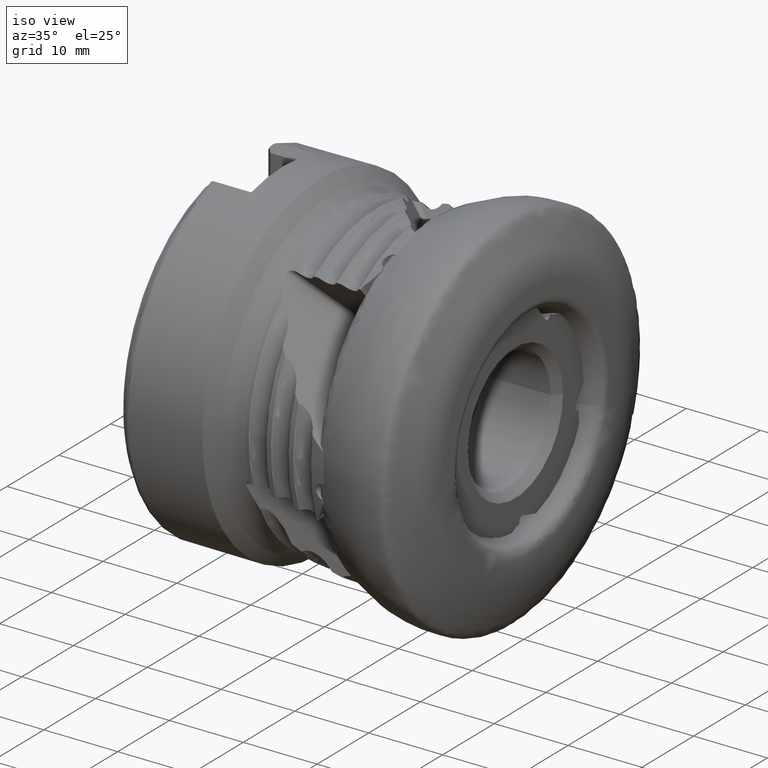
[diagram: clean part render]
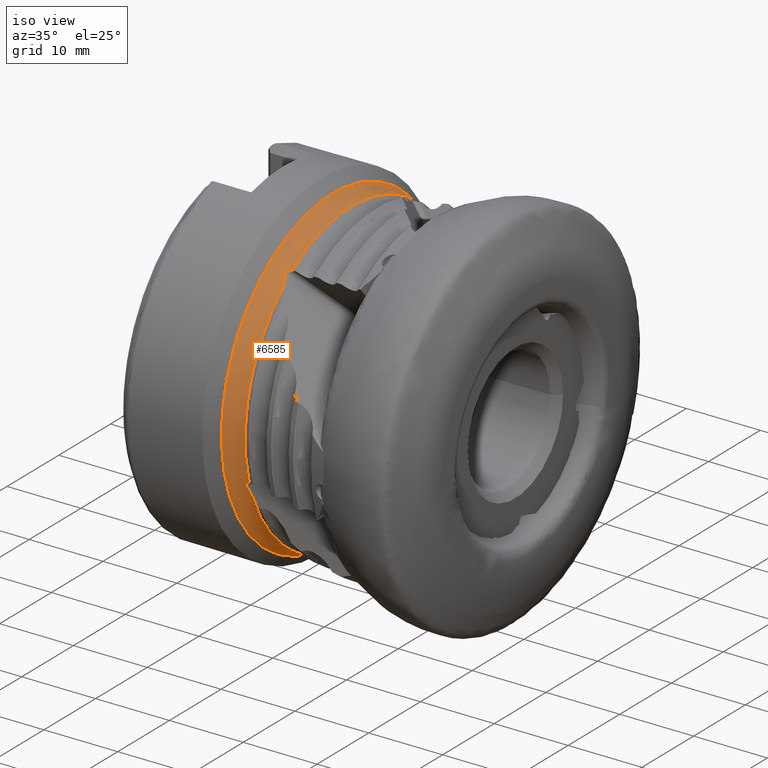
[diagram: same view with one face highlighted and labeled with its STEP entity id]
A machine part, iso view. The second image highlights one B-rep face of the part: STEP entity #6585.
In plain terms, the highlighted toroidal blend (fillet) surface has major radius 23.6136 mm and minor (blend) radius 3 mm.
Its self-contained STEP definition (entity closure, byte-faithful):
#55 = ORIENTED_EDGE ( 'NONE', *, *, #7928, .F. ) ;
#81 = CARTESIAN_POINT ( 'NONE',  ( -23.80638413270529300, -0.4492731188287914500, -20.60867567491587600 ) ) ;
#188 = B_SPLINE_CURVE_WITH_KNOTS ( 'NONE', 3,
 ( #9385, #11515, #10478, #4196 ),
 .UNSPECIFIED., .F., .F.,
 ( 4, 4 ),
 ( 0.005550683111474337400, 0.007261614352869764200 ),
 .UNSPECIFIED. ) ;
#226 = CARTESIAN_POINT ( 'NONE',  ( -23.28371104415699100, 19.41116170045405900, -7.074292132318036300 ) ) ;
#289 = CARTESIAN_POINT ( 'NONE',  ( -23.86417863357629800, 12.36359245571694000, 16.49488308533163700 ) ) ;
#382 = VERTEX_POINT ( 'NONE', #11715 ) ;
#422 = VERTEX_POINT ( 'NONE', #5547 ) ;
#508 = CARTESIAN_POINT ( 'NONE',  ( -23.80638413270612100, -11.75000604274692300, 16.93684496606680800 ) ) ;
#513 = DIRECTION ( 'NONE',  ( 1.000000000000000000, -0.0000000000000000000, -0.0000000000000000000 ) ) ;
#664 = DIRECTION ( 'NONE',  ( 1.000000000000000000, -0.0000000000000000000, -0.0000000000000000000 ) ) ;
#936 = DIRECTION ( 'NONE',  ( 0.0000000000000000000, 0.0000000000000000000, -1.000000000000000000 ) ) ;
#1129 = CARTESIAN_POINT ( 'NONE',  ( -23.63871154043384600, -0.6052493657359374600, -20.60907077964518000 ) ) ;
#1332 = CARTESIAN_POINT ( 'NONE',  ( -23.75547720046087400, 12.52429176220558700, 16.37257519267569700 ) ) ;
#1391 = CARTESIAN_POINT ( 'NONE',  ( -23.66010781106682600, 11.80275394061760800, 16.90670372290878400 ) ) ;
#1510 = ORIENTED_EDGE ( 'NONE', *, *, #9169, .F. ) ;
#1559 = CARTESIAN_POINT ( 'NONE',  ( -23.63871154043459600, -11.62405084501264200, 17.02884515014766400 ) ) ;
#1907 = CARTESIAN_POINT ( 'NONE',  ( -23.80638413270612500, -19.73884832167570700, -5.941146887853518500 ) ) ;
#2164 = CARTESIAN_POINT ( 'NONE',  ( -23.43218048049279600, -0.7002585191186652100, -20.62476210813031600 ) ) ;
#2309 = AXIS2_PLACEMENT_3D ( 'NONE', #6954, #664, #7996 ) ;
#2382 = CARTESIAN_POINT ( 'NONE',  ( -23.57137482581160300, 12.63602328376686400, 16.29752341412711300 ) ) ;
#2440 = CARTESIAN_POINT ( 'NONE',  ( -23.28371104415699500, 10.92251005285955600, 17.53674946732526900 ) ) ;
#2576 = CARTESIAN_POINT ( 'NONE',  ( -23.66009214784963900, 19.72649692085947500, -6.000582844810617500 ) ) ;
#2596 = CARTESIAN_POINT ( 'NONE',  ( -25.91968037084017200, 0.0000000000000000000, -21.48087253406423600 ) ) ;
#2613 = CARTESIAN_POINT ( 'NONE',  ( -23.43218048049313000, -11.55640995677697600, 17.09738468074782200 ) ) ;
#2722 = CARTESIAN_POINT ( 'NONE',  ( -23.28371104415699100, 0.0000000000000000000, 0.0000000000000000000 ) ) ;
#2777 = B_SPLINE_CURVE_WITH_KNOTS ( 'NONE', 3,
 ( #4267, #10546, #6377, #81, #7432, #1129, #8480, #2164, #9534, #3247 ),
 .UNSPECIFIED., .F., .F.,
 ( 4, 2, 2, 2, 4 ),
 ( 5.961111266197994900E-016, 0.0002279252545752855200, 0.0004558505091499748900, 0.0006837757637246643100, 0.0009117010182993536800 ),
 .UNSPECIFIED. ) ;
#2869 = EDGE_LOOP ( 'NONE', ( #7251, #3016, #3222, #5360, #6672, #11355, #13278, #4565, #7765, #11517, #10821, #1510, #55, #9054, #10248 ) ) ;
#2880 = CARTESIAN_POINT ( 'NONE',  ( -23.28371104415699100, -19.14433896403621600, -7.767438018074937400 ) ) ;
#2940 = VERTEX_POINT ( 'NONE', #9141 ) ;
#2948 = CARTESIAN_POINT ( 'NONE',  ( -23.84192257473487000, -19.65191913252433100, -6.223271270567659400 ) ) ;
#2970 = CARTESIAN_POINT ( 'NONE',  ( -23.63871154043458100, -19.78742339961641200, -5.792926755920480500 ) ) ;
#3016 = ORIENTED_EDGE ( 'NONE', *, *, #7062, .T. ) ;
#3222 = ORIENTED_EDGE ( 'NONE', *, *, #7274, .F. ) ;
#3231 = CARTESIAN_POINT ( 'NONE',  ( -23.84192257473534200, -0.1540942894880341100, -20.61318233190343800 ) ) ;
#3247 = CARTESIAN_POINT ( 'NONE',  ( -23.28371104415699100, -0.7296727846162556200, -20.64718831613500100 ) ) ;
#3356 = CARTESIAN_POINT ( 'NONE',  ( -23.86417863357675600, 19.50812622417452900, -6.661275976229689800 ) ) ;
#3416 = CARTESIAN_POINT ( 'NONE',  ( -23.84192257473534200, -0.1540942894880341100, -20.61318233190343800 ) ) ;
#3470 = CARTESIAN_POINT ( 'NONE',  ( -23.35841736027987600, 12.71089860022907200, 16.27028787659199300 ) ) ;
#3603 = AXIS2_PLACEMENT_3D ( 'NONE', #4606, #11953, #5651 ) ;
#3649 = CARTESIAN_POINT ( 'NONE',  ( -23.47295510748821100, 19.89111950407114500, -5.484695492191007400 ) ) ;
#3686 = CARTESIAN_POINT ( 'NONE',  ( -23.28371104415699100, -11.54579511044232200, 17.13281713560958500 ) ) ;
#3745 = VERTEX_POINT ( 'NONE', #2880 ) ;
#3795 = DIRECTION ( 'NONE',  ( 0.0000000000000000000, 0.0000000000000000000, -1.000000000000000000 ) ) ;
#3938 = CARTESIAN_POINT ( 'NONE',  ( -23.28371104415699100, -13.30319862797051500, 15.80707797157066700 ) ) ;
#3967 = FACE_OUTER_BOUND ( 'NONE', #5201, .T. ) ;
#4031 = VERTEX_POINT ( 'NONE', #7882 ) ;
#4039 = CARTESIAN_POINT ( 'NONE',  ( -23.43218048049313000, -19.83170618283807200, -5.707416568654029000 ) ) ;
#4094 = B_SPLINE_CURVE_WITH_KNOTS ( 'NONE', 3,
 ( #3416, #9684, #11829, #5528 ),
 .UNSPECIFIED., .F., .F.,
 ( 4, 4 ),
 ( 0.001344152581504036900, 0.003062699632682012100 ),
 .UNSPECIFIED. ) ;
#4129 = CARTESIAN_POINT ( 'NONE',  ( -23.28371104415699500, 1.471346456046979300, -20.60761867224909200 ) ) ;
#4196 = CARTESIAN_POINT ( 'NONE',  ( -23.28371104415699100, -13.30319862797051500, 15.80707797157066700 ) ) ;
#4267 = CARTESIAN_POINT ( 'NONE',  ( -23.84192257473534200, -0.1540942894880341100, -20.61318233190343800 ) ) ;
#4314 = CARTESIAN_POINT ( 'NONE',  ( -23.84192257473488000, 12.24078947643935500, 16.58584046383662200 ) ) ;
#4396 = B_SPLINE_CURVE_WITH_KNOTS ( 'NONE', 3,
 ( #13066, #2576, #3649, #10987 ),
 .UNSPECIFIED., .F., .F.,
 ( 4, 4 ),
 ( 0.003932945843198613600, 0.005650102439983208400 ),
 .UNSPECIFIED. ) ;
#4416 = CARTESIAN_POINT ( 'NONE',  ( -23.75547720046198900, 19.44146332255862900, -6.851905316207843400 ) ) ;
#4531 = CARTESIAN_POINT ( 'NONE',  ( -23.28371104415699100, 0.0000000000000000000, 0.0000000000000000000 ) ) ;
#4565 = ORIENTED_EDGE ( 'NONE', *, *, #10525, .T. ) ;
#4606 = CARTESIAN_POINT ( 'NONE',  ( -23.28371104415699100, 0.0000000000000000000, 0.0000000000000000000 ) ) ;
#4625 = TOROIDAL_SURFACE ( 'NONE', #6646, 23.61358647205465300, 2.999999999999999100 ) ;
#4655 = CARTESIAN_POINT ( 'NONE',  ( -23.84192257473487700, -11.99145967857793900, 16.76698916548192000 ) ) ;
#4716 = AXIS2_PLACEMENT_3D ( 'NONE', #4531, #11876, #5578 ) ;
#4792 = CIRCLE ( 'NONE', #10672, 21.48087253406423600 ) ;
#4817 = AXIS2_PLACEMENT_3D ( 'NONE', #2722, #10065, #3795 ) ;
#5064 = EDGE_CURVE ( 'NONE', #2940, #4031, #9440, .T. ) ;
#5070 = VERTEX_POINT ( 'NONE', #10977 ) ;
#5103 = CARTESIAN_POINT ( 'NONE',  ( -23.28371104415699100, -19.86212428201259800, -5.686372019173274900 ) ) ;
#5127 = CARTESIAN_POINT ( 'NONE',  ( -23.47292674444690900, -19.31605110026802300, -7.254571711522534500 ) ) ;
#5179 = VERTEX_POINT ( 'NONE', #13376 ) ;
#5201 = EDGE_LOOP ( 'NONE', ( #13254 ) ) ;
#5324 = VERTEX_POINT ( 'NONE', #7307 ) ;
#5360 = ORIENTED_EDGE ( 'NONE', *, *, #12880, .F. ) ;
#5465 = CARTESIAN_POINT ( 'NONE',  ( -23.57137482581240900, 19.40461177847997100, -6.981360582894525100 ) ) ;
#5528 = CARTESIAN_POINT ( 'NONE',  ( -23.28371104415699500, 1.471346456046979300, -20.60761867224909200 ) ) ;
#5547 = CARTESIAN_POINT ( 'NONE',  ( -23.84192257473487300, 19.55668362414941400, -6.516376026847661200 ) ) ;
#5578 = DIRECTION ( 'NONE',  ( 0.0000000000000000000, 0.0000000000000000000, -1.000000000000000000 ) ) ;
#5651 = DIRECTION ( 'NONE',  ( 0.0000000000000000000, 0.0000000000000000000, -1.000000000000000000 ) ) ;
#5754 = CARTESIAN_POINT ( 'NONE',  ( -23.86638392289609800, -11.93219220718889800, 16.80969811072811400 ) ) ;
#5826 = B_SPLINE_CURVE_WITH_KNOTS ( 'NONE', 3,
 ( #2948, #7177, #5127, #12477 ),
 .UNSPECIFIED., .F., .F.,
 ( 4, 4 ),
 ( 0.002626934736421045700, 0.004345146049159988800 ),
 .UNSPECIFIED. ) ;
#5886 = VERTEX_POINT ( 'NONE', #7682 ) ;
#5987 = EDGE_CURVE ( 'NONE', #422, #382, #4396, .T. ) ;
#5995 = EDGE_CURVE ( 'NONE', #9358, #9358, #4792, .T. ) ;
#6114 = DIRECTION ( 'NONE',  ( 0.0000000000000000000, 0.0000000000000000000, -1.000000000000000000 ) ) ;
#6184 = EDGE_CURVE ( 'NONE', #5179, #3745, #5826, .T. ) ;
#6377 = CARTESIAN_POINT ( 'NONE',  ( -23.86417863357640800, -0.3069073923539431500, -20.61177804708606600 ) ) ;
#6388 = CIRCLE ( 'NONE', #3603, 20.66007763137765400 ) ;
#6431 = B_SPLINE_CURVE_WITH_KNOTS ( 'NONE', 3,
 ( #6484, #9634, #3356, #10687, #4416, #11775, #5465, #12829, #6530, #226 ),
 .UNSPECIFIED., .F., .F.,
 ( 4, 2, 2, 2, 4 ),
 ( 2.221529986854170700E-017, 0.0002279252545739080700, 0.0004558505091477939100, 0.0006837757637216797200, 0.0009117010182955655900 ),
 .UNSPECIFIED. ) ;
#6484 = CARTESIAN_POINT ( 'NONE',  ( -23.84192257473487300, 19.55668362414941400, -6.516376026847661200 ) ) ;
#6530 = CARTESIAN_POINT ( 'NONE',  ( -23.35841736028009000, 19.40184698827832600, -7.060987484475214500 ) ) ;
#6558 = CIRCLE ( 'NONE', #13262, 20.66007763137765400 ) ;
#6585 = ADVANCED_FACE ( 'NONE', ( #9531, #3967 ), #4625, .F. ) ;
#6646 = AXIS2_PLACEMENT_3D ( 'NONE', #12270, #11348, #6114 ) ;
#6672 = ORIENTED_EDGE ( 'NONE', *, *, #5064, .T. ) ;
#6718 = EDGE_CURVE ( 'NONE', #9563, #5070, #2777, .T. ) ;
#6805 = CARTESIAN_POINT ( 'NONE',  ( -23.86417863357676300, -11.86700586349091300, 16.85567436342116200 ) ) ;
#6814 = CARTESIAN_POINT ( 'NONE',  ( -25.91968037084017200, 0.0000000000000000000, 0.0000000000000000000 ) ) ;
#6954 = CARTESIAN_POINT ( 'NONE',  ( -23.28371104415699100, 0.0000000000000000000, 0.0000000000000000000 ) ) ;
#7062 = EDGE_CURVE ( 'NONE', #5179, #5324, #11977, .T. ) ;
#7153 = CARTESIAN_POINT ( 'NONE',  ( -23.84192257473487000, -19.65191913252433100, -6.223271270567659400 ) ) ;
#7177 = CARTESIAN_POINT ( 'NONE',  ( -23.66005572467571500, -19.48609213898908600, -6.740474054059466100 ) ) ;
#7237 = CARTESIAN_POINT ( 'NONE',  ( -23.28371104415699500, 10.92251005285955600, 17.53674946732526900 ) ) ;
#7238 = DIRECTION ( 'NONE',  ( 1.000000000000000000, -0.0000000000000000000, -0.0000000000000000000 ) ) ;
#7251 = ORIENTED_EDGE ( 'NONE', *, *, #6184, .F. ) ;
#7274 = EDGE_CURVE ( 'NONE', #10258, #5324, #11524, .T. ) ;
#7307 = CARTESIAN_POINT ( 'NONE',  ( -23.28371104415699100, -19.86212428201259800, -5.686372019173274900 ) ) ;
#7432 = CARTESIAN_POINT ( 'NONE',  ( -23.75547720046113700, -0.5088066378299503900, -20.60728556578887400 ) ) ;
#7529 = EDGE_CURVE ( 'NONE', #13447, #11961, #8937, .T. ) ;
#7613 = EDGE_CURVE ( 'NONE', #382, #9379, #12672, .T. ) ;
#7638 = CARTESIAN_POINT ( 'NONE',  ( -23.80638413270504500, 12.47694521924269800, 16.40869273906938000 ) ) ;
#7682 = CARTESIAN_POINT ( 'NONE',  ( -23.28371104415699100, 19.41116170045405900, -7.074292132318036300 ) ) ;
#7695 = CARTESIAN_POINT ( 'NONE',  ( -23.47296731068114900, 11.36297775288212000, 17.22269445451145100 ) ) ;
#7765 = ORIENTED_EDGE ( 'NONE', *, *, #7613, .F. ) ;
#7853 = CARTESIAN_POINT ( 'NONE',  ( -23.75547720046199300, -11.70102532849589000, 16.97071326864511000 ) ) ;
#7863 = DIRECTION ( 'NONE',  ( 0.0000000000000000000, 0.0000000000000000000, -1.000000000000000000 ) ) ;
#7882 = CARTESIAN_POINT ( 'NONE',  ( -23.28371104415699100, -11.54579511044232200, 17.13281713560958500 ) ) ;
#7928 = EDGE_CURVE ( 'NONE', #9563, #11430, #4094, .T. ) ;
#7996 = DIRECTION ( 'NONE',  ( 0.0000000000000000000, 0.0000000000000000000, -1.000000000000000000 ) ) ;
#8202 = CARTESIAN_POINT ( 'NONE',  ( -23.86417863357675300, -19.69780542404668100, -6.077503425438614200 ) ) ;
#8287 = CARTESIAN_POINT ( 'NONE',  ( -23.28371104415699100, 12.72643047661696900, 16.27503533201652200 ) ) ;
#8447 = B_SPLINE_CURVE_WITH_KNOTS ( 'NONE', 3,
 ( #12884, #11838, #289, #7638, #1332, #8695, #2382, #9735, #3470, #10800 ),
 .UNSPECIFIED., .F., .F.,
 ( 4, 2, 2, 2, 4 ),
 ( 9.868183040423138300E-016, 0.0002279252545757385300, 0.0004558505091504902600, 0.0006837757637252419700, 0.0009117010182999936900 ),
 .UNSPECIFIED. ) ;
#8480 = CARTESIAN_POINT ( 'NONE',  ( -23.57137482581179100, -0.6433136661697490500, -20.61224154207490100 ) ) ;
#8695 = CARTESIAN_POINT ( 'NONE',  ( -23.63871154043362600, 12.60336489044223500, 16.31733184787012200 ) ) ;
#8746 = CARTESIAN_POINT ( 'NONE',  ( -23.84192257473488000, 12.24078947643935500, 16.58584046383662200 ) ) ;
#8918 = CARTESIAN_POINT ( 'NONE',  ( -23.57137482581240900, -11.59511990647728100, 17.05378398527233600 ) ) ;
#8937 = B_SPLINE_CURVE_WITH_KNOTS ( 'NONE', 3,
 ( #8746, #1391, #7695, #2440 ),
 .UNSPECIFIED., .F., .F.,
 ( 4, 4 ),
 ( 0.008175326309048495200, 0.009901747750582955800 ),
 .UNSPECIFIED. ) ;
#9054 = ORIENTED_EDGE ( 'NONE', *, *, #6718, .T. ) ;
#9141 = CARTESIAN_POINT ( 'NONE',  ( -23.84192257473487700, -11.99145967857793900, 16.76698916548192000 ) ) ;
#9169 = EDGE_CURVE ( 'NONE', #11430, #5886, #13128, .T. ) ;
#9262 = CARTESIAN_POINT ( 'NONE',  ( -23.75547720046198600, -19.75592311843846700, -5.884097579324957500 ) ) ;
#9335 = EDGE_CURVE ( 'NONE', #3745, #5070, #6558, .T. ) ;
#9358 = VERTEX_POINT ( 'NONE', #2596 ) ;
#9379 = VERTEX_POINT ( 'NONE', #8287 ) ;
#9385 = CARTESIAN_POINT ( 'NONE',  ( -23.84192257473487700, -11.99145967857793900, 16.76698916548192000 ) ) ;
#9440 = B_SPLINE_CURVE_WITH_KNOTS ( 'NONE', 3,
 ( #4655, #5754, #6805, #508, #7853, #1559, #8918, #2613, #9956, #3686 ),
 .UNSPECIFIED., .F., .F.,
 ( 4, 2, 2, 2, 4 ),
 ( 3.004629197474318900E-017, 0.0002279252545739137900, 0.0004558505091477974800, 0.0006837757637216812400, 0.0009117010182955649400 ),
 .UNSPECIFIED. ) ;
#9531 = FACE_OUTER_BOUND ( 'NONE', #2869, .T. ) ;
#9534 = CARTESIAN_POINT ( 'NONE',  ( -23.35841736027992600, -0.7198977169483643500, -20.63421813613527100 ) ) ;
#9563 = VERTEX_POINT ( 'NONE', #3231 ) ;
#9634 = CARTESIAN_POINT ( 'NONE',  ( -23.86638392289609500, 19.53383892073872700, -6.585764834986797200 ) ) ;
#9684 = CARTESIAN_POINT ( 'NONE',  ( -23.66003265779629700, 0.3891070347255841700, -20.61529620683809600 ) ) ;
#9735 = CARTESIAN_POINT ( 'NONE',  ( -23.43218048049269700, 12.68945204162239000, 16.27418142008783900 ) ) ;
#9956 = CARTESIAN_POINT ( 'NONE',  ( -23.35841736028009000, -11.54607962578339400, 17.11657839895432100 ) ) ;
#10065 = DIRECTION ( 'NONE',  ( 1.000000000000000000, -0.0000000000000000000, -0.0000000000000000000 ) ) ;
#10248 = ORIENTED_EDGE ( 'NONE', *, *, #9335, .F. ) ;
#10258 = VERTEX_POINT ( 'NONE', #3938 ) ;
#10269 = CARTESIAN_POINT ( 'NONE',  ( -23.86638392289609100, -19.67422309733196400, -6.153706765805871700 ) ) ;
#10314 = CARTESIAN_POINT ( 'NONE',  ( -23.57137482581240600, -19.80220148959990600, -5.757705274430452200 ) ) ;
#10478 = CARTESIAN_POINT ( 'NONE',  ( -23.47292539122453900, -12.86849886225564400, 16.12886802085116500 ) ) ;
#10525 = EDGE_CURVE ( 'NONE', #13447, #9379, #8447, .T. ) ;
#10546 = CARTESIAN_POINT ( 'NONE',  ( -23.86638392290015500, -0.2271463692116338100, -20.61289804879947600 ) ) ;
#10672 = AXIS2_PLACEMENT_3D ( 'NONE', #6814, #513, #7863 ) ;
#10687 = CARTESIAN_POINT ( 'NONE',  ( -23.80638413270612100, 19.46118226400862400, -6.795715142367850300 ) ) ;
#10800 = CARTESIAN_POINT ( 'NONE',  ( -23.28371104415699100, 12.72643047661696900, 16.27503533201652200 ) ) ;
#10821 = ORIENTED_EDGE ( 'NONE', *, *, #11086, .T. ) ;
#10977 = CARTESIAN_POINT ( 'NONE',  ( -23.28371104415699100, -0.7296727846162556200, -20.64718831613500100 ) ) ;
#10987 = CARTESIAN_POINT ( 'NONE',  ( -23.28371104415699500, 20.05368108310006600, -4.968770748572142200 ) ) ;
#11086 = EDGE_CURVE ( 'NONE', #422, #5886, #6431, .T. ) ;
#11190 = EDGE_CURVE ( 'NONE', #11961, #4031, #6388, .T. ) ;
#11348 = DIRECTION ( 'NONE',  ( 1.000000000000000000, -0.0000000000000000000, -0.0000000000000000000 ) ) ;
#11355 = ORIENTED_EDGE ( 'NONE', *, *, #11190, .F. ) ;
#11384 = CARTESIAN_POINT ( 'NONE',  ( -23.35841736028009300, -19.84676824577576700, -5.691660654936043800 ) ) ;
#11430 = VERTEX_POINT ( 'NONE', #4129 ) ;
#11515 = CARTESIAN_POINT ( 'NONE',  ( -23.66005398626056100, -12.43210960894644200, 16.44945083783314700 ) ) ;
#11517 = ORIENTED_EDGE ( 'NONE', *, *, #5987, .F. ) ;
#11524 = CIRCLE ( 'NONE', #4716, 20.66007763137765400 ) ;
#11715 = CARTESIAN_POINT ( 'NONE',  ( -23.28371104415699500, 20.05368108310006600, -4.968770748572142200 ) ) ;
#11775 = CARTESIAN_POINT ( 'NONE',  ( -23.63871154043459200, 19.41335871992265900, -6.944179462452682500 ) ) ;
#11829 = CARTESIAN_POINT ( 'NONE',  ( -23.47290879233737100, 0.9305709566914003300, -20.61244175613191100 ) ) ;
#11838 = CARTESIAN_POINT ( 'NONE',  ( -23.86638392290083700, 12.29972275299574700, 16.54267153886301900 ) ) ;
#11876 = DIRECTION ( 'NONE',  ( 1.000000000000000000, -0.0000000000000000000, -0.0000000000000000000 ) ) ;
#11953 = DIRECTION ( 'NONE',  ( 1.000000000000000000, -0.0000000000000000000, -0.0000000000000000000 ) ) ;
#11961 = VERTEX_POINT ( 'NONE', #7237 ) ;
#11977 = B_SPLINE_CURVE_WITH_KNOTS ( 'NONE', 3,
 ( #7153, #10269, #8202, #1907, #9262, #2970, #10314, #4039, #11384, #5103 ),
 .UNSPECIFIED., .F., .F.,
 ( 4, 2, 2, 2, 4 ),
 ( 2.798502021246082300E-017, 0.0002279252545739137900, 0.0004558505091477996000, 0.0006837757637216854700, 0.0009117010182955712300 ),
 .UNSPECIFIED. ) ;
#12270 = CARTESIAN_POINT ( 'NONE',  ( -23.80981514796421200, 0.0000000000000000000, 0.0000000000000000000 ) ) ;
#12477 = CARTESIAN_POINT ( 'NONE',  ( -23.28371104415699100, -19.14433896403621600, -7.767438018074937400 ) ) ;
#12672 = CIRCLE ( 'NONE', #2309, 20.66007763137765400 ) ;
#12829 = CARTESIAN_POINT ( 'NONE',  ( -23.43218048049313000, 19.39892261711121100, -7.039387424051581900 ) ) ;
#12880 = EDGE_CURVE ( 'NONE', #2940, #10258, #188, .T. ) ;
#12884 = CARTESIAN_POINT ( 'NONE',  ( -23.84192257473488000, 12.24078947643935500, 16.58584046383662200 ) ) ;
#13066 = CARTESIAN_POINT ( 'NONE',  ( -23.84192257473487300, 19.55668362414941400, -6.516376026847661200 ) ) ;
#13128 = CIRCLE ( 'NONE', #4817, 20.66007763137765400 ) ;
#13254 = ORIENTED_EDGE ( 'NONE', *, *, #5995, .T. ) ;
#13262 = AXIS2_PLACEMENT_3D ( 'NONE', #13534, #7238, #936 ) ;
#13278 = ORIENTED_EDGE ( 'NONE', *, *, #7529, .F. ) ;
#13376 = CARTESIAN_POINT ( 'NONE',  ( -23.84192257473487000, -19.65191913252433100, -6.223271270567659400 ) ) ;
#13447 = VERTEX_POINT ( 'NONE', #4314 ) ;
#13534 = CARTESIAN_POINT ( 'NONE',  ( -23.28371104415699100, 0.0000000000000000000, 0.0000000000000000000 ) ) ;